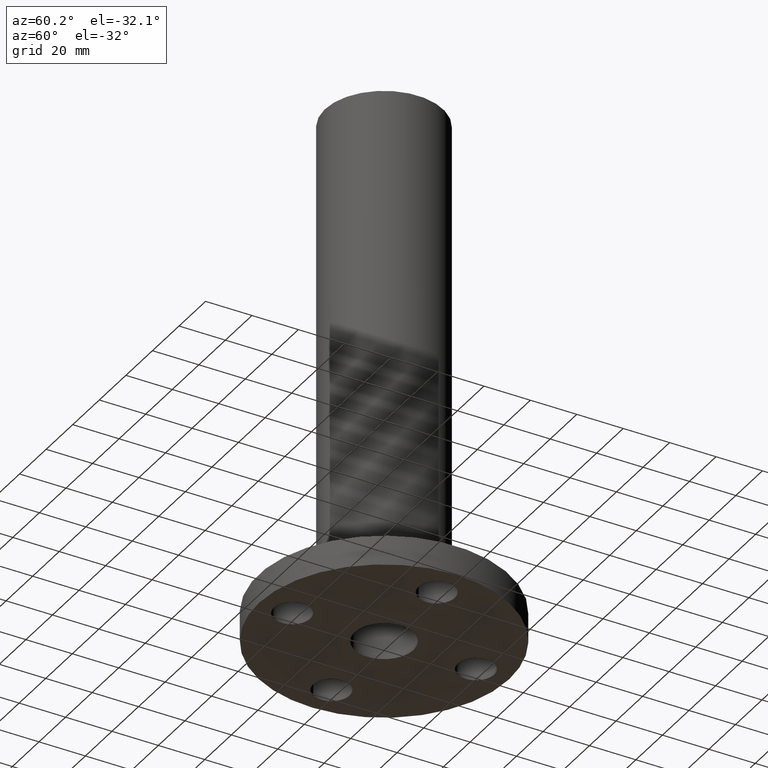
[diagram: clean part render]
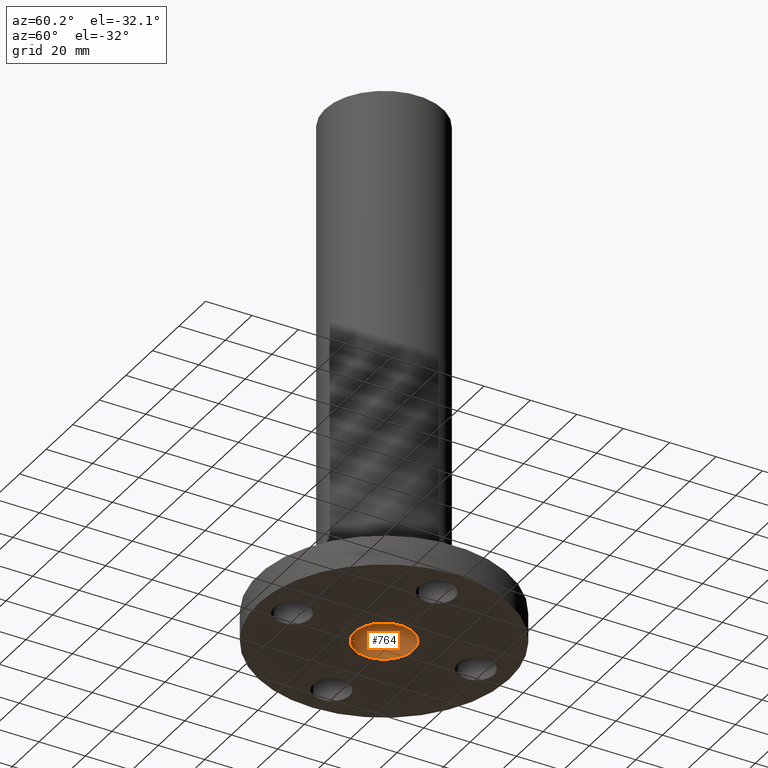
[diagram: same view with one face highlighted and labeled with its STEP entity id]
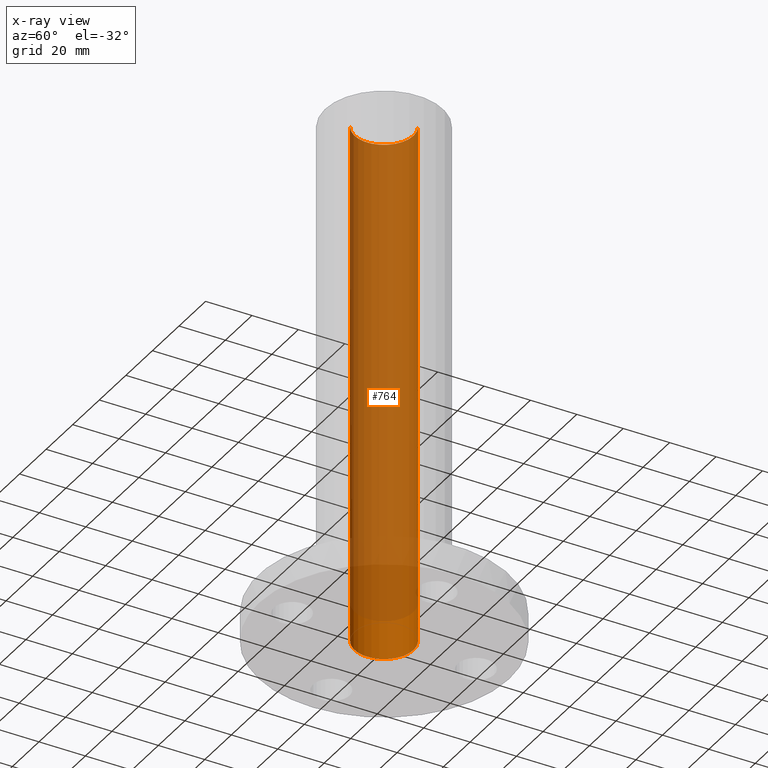
[diagram: x-ray of the same camera — body ghosted, the highlighted face saturated]
A machine part, auxiliary view. The second image highlights one B-rep face of the part: STEP entity #764.
The next image is the same camera in x-ray: the body ghosted, the highlighted face saturated — about 90% of this face is hidden behind the body in this view.
In plain terms, the highlighted cylindrical surface (edge-blend (fillet) strip) has radius 12.7 mm, axis along (0, 0, -1).
Its self-contained STEP definition (entity closure, byte-faithful):
#526=AXIS2_PLACEMENT_3D('Circle Axis2P3D',#524,#525,$) ;
#725=AXIS2_PLACEMENT_3D('Cylinder Axis2P3D',#722,#723,#724) ;
#755=AXIS2_PLACEMENT_3D('Circle Axis2P3D',#753,#754,$) ;
#524=CARTESIAN_POINT('Axis2P3D Location',(0.,0.,8.93750000004)) ;
#528=CARTESIAN_POINT('Vertex',(-0.239712769303,-0.438791280947,8.93750000004)) ;
#530=CARTESIAN_POINT('Vertex',(0.239712769303,0.438791280947,8.93750000004)) ;
#722=CARTESIAN_POINT('Axis2P3D Location',(0.,0.,4.43750000002)) ;
#731=CARTESIAN_POINT('Vertex',(-0.239712769303,-0.438791280947,0.)) ;
#733=CARTESIAN_POINT('Vertex',(0.239712769303,0.438791280947,0.)) ;
#736=CARTESIAN_POINT('Line Origine',(-0.239712769303,-0.438791280947,4.46875000002)) ;
#741=CARTESIAN_POINT('Line Origine',(0.239712769303,0.438791280947,4.46875000002)) ;
#753=CARTESIAN_POINT('Axis2P3D Location',(0.,0.,0.)) ;
#525=DIRECTION('Axis2P3D Direction',(0.,0.,-0.0393700787402)) ;
#723=DIRECTION('Axis2P3D Direction',(0.,0.,-0.0393700787402)) ;
#724=DIRECTION('Axis2P3D XDirection',(-0.0188750212049,-0.0345504945626,0.)) ;
#737=DIRECTION('Vector Direction',(0.,0.,-0.0393700787402)) ;
#742=DIRECTION('Vector Direction',(0.,0.,-0.0393700787402)) ;
#754=DIRECTION('Axis2P3D Direction',(0.,0.,-0.0393700787402)) ;
#738=VECTOR('Line Direction',#737,0.0393700787402) ;
#743=VECTOR('Line Direction',#742,0.0393700787402) ;
#759=ORIENTED_EDGE('',*,*,#757,.F.) ;
#760=ORIENTED_EDGE('',*,*,#745,.F.) ;
#761=ORIENTED_EDGE('',*,*,#532,.F.) ;
#762=ORIENTED_EDGE('',*,*,#740,.T.) ;
#764=ADVANCED_FACE('PartBody',(#763),#726,.F.) ;
#527=CIRCLE('generated circle',#526,0.500000000002) ;
#756=CIRCLE('generated circle',#755,0.500000000002) ;
#726=CYLINDRICAL_SURFACE('generated cylinder',#725,0.500000000002) ;
#532=EDGE_CURVE('',#529,#531,#527,.T.) ;
#740=EDGE_CURVE('',#529,#732,#739,.T.) ;
#745=EDGE_CURVE('',#531,#734,#744,.T.) ;
#757=EDGE_CURVE('',#734,#732,#756,.F.) ;
#758=EDGE_LOOP('',(#759,#760,#761,#762)) ;
#763=FACE_OUTER_BOUND('',#758,.T.) ;
#739=LINE('Line',#736,#738) ;
#744=LINE('Line',#741,#743) ;
#529=VERTEX_POINT('',#528) ;
#531=VERTEX_POINT('',#530) ;
#732=VERTEX_POINT('',#731) ;
#734=VERTEX_POINT('',#733) ;